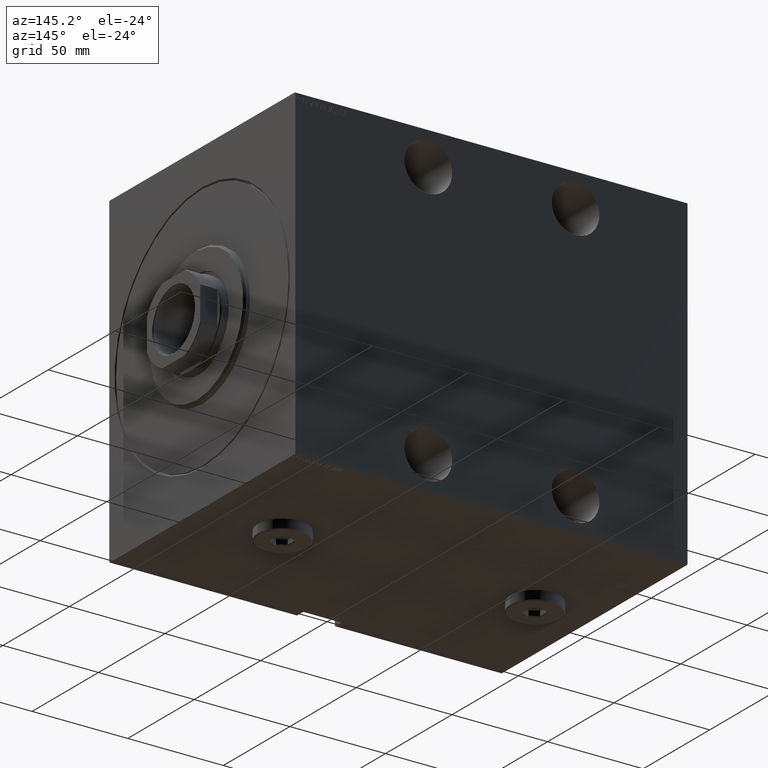
[diagram: clean part render]
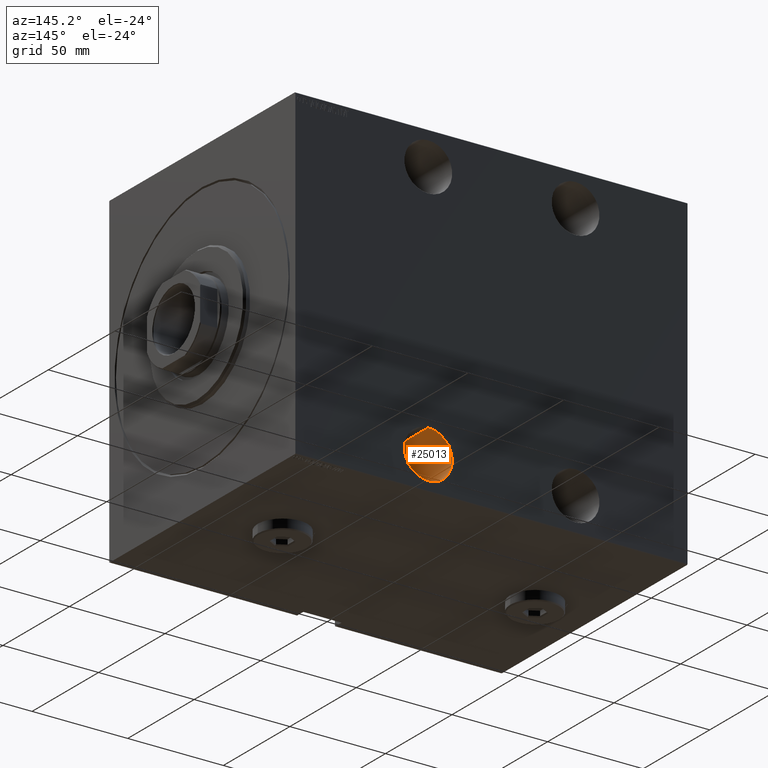
[diagram: same view with one face highlighted and labeled with its STEP entity id]
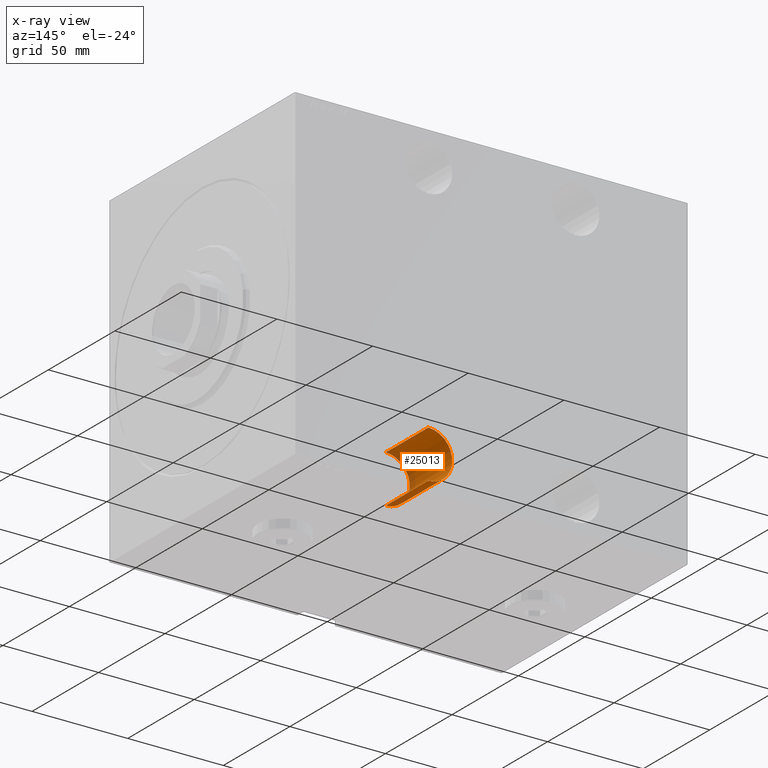
[diagram: x-ray of the same camera — body ghosted, the highlighted face saturated]
A machine part, auxiliary view. The second image highlights one B-rep face of the part: STEP entity #25013.
The next image is the same camera in x-ray: the body ghosted, the highlighted face saturated — about 11% of this face is hidden behind the body in this view.
In plain terms, the highlighted cylindrical surface (edge-blend (fillet) strip) has radius 12.5 mm, axis along (0, 1, -0).
Its self-contained STEP definition (entity closure, byte-faithful):
#487 = CARTESIAN_POINT ( 'NONE',  ( 69.49999999999998579, -69.99999999999998579, -55.00000000000004974 ) ) ;
#4274 = ORIENTED_EDGE ( 'NONE', *, *, #7788, .T. ) ;
#4569 = CARTESIAN_POINT ( 'NONE',  ( 69.49999999999998579, -37.99999999999999289, -80.00000000000004263 ) ) ;
#4865 = CARTESIAN_POINT ( 'NONE',  ( 69.49999999999998579, -37.99999999999999289, -80.00000000000004263 ) ) ;
#5990 = LINE ( 'NONE', #6436, #9658 ) ;
#6436 = CARTESIAN_POINT ( 'NONE',  ( 69.49999999999998579, -37.99999999999999289, -55.00000000000004974 ) ) ;
#6846 = ORIENTED_EDGE ( 'NONE', *, *, #33296, .F. ) ;
#6955 = CIRCLE ( 'NONE', #11947, 12.49999999999999645 ) ;
#7072 = DIRECTION ( 'NONE',  ( 0.000000000000000000, 0.000000000000000000, -1.000000000000000000 ) ) ;
#7321 = AXIS2_PLACEMENT_3D ( 'NONE', #10663, #24359, #7072 ) ;
#7788 = EDGE_CURVE ( 'NONE', #18743, #37224, #35258, .T. ) ;
#7900 = DIRECTION ( 'NONE',  ( 0.000000000000000000, 0.000000000000000000, -1.000000000000000000 ) ) ;
#9658 = VECTOR ( 'NONE', #30225, 1000.000000000000000 ) ;
#9772 = DIRECTION ( 'NONE',  ( 0.000000000000000000, 0.000000000000000000, -1.000000000000000000 ) ) ;
#10663 = CARTESIAN_POINT ( 'NONE',  ( 69.49999999999998579, -69.99999999999998579, -67.50000000000004263 ) ) ;
#11054 = CARTESIAN_POINT ( 'NONE',  ( 69.49999999999998579, -37.99999999999999289, -67.50000000000004263 ) ) ;
#11686 = ORIENTED_EDGE ( 'NONE', *, *, #42128, .F. ) ;
#11947 = AXIS2_PLACEMENT_3D ( 'NONE', #12528, #25777, #9772 ) ;
#12528 = CARTESIAN_POINT ( 'NONE',  ( 69.49999999999998579, -37.99999999999999289, -67.50000000000004263 ) ) ;
#17993 = DIRECTION ( 'NONE',  ( -0.000000000000000000, -1.000000000000000000, -0.000000000000000000 ) ) ;
#18743 = VERTEX_POINT ( 'NONE', #24617 ) ;
#22035 = CARTESIAN_POINT ( 'NONE',  ( 69.49999999999998579, -37.99999999999999289, -55.00000000000004974 ) ) ;
#22878 = EDGE_LOOP ( 'NONE', ( #6846, #11686, #38357, #4274 ) ) ;
#23323 = VERTEX_POINT ( 'NONE', #4569 ) ;
#24359 = DIRECTION ( 'NONE',  ( 0.000000000000000000, -1.000000000000000000, 0.000000000000000000 ) ) ;
#24617 = CARTESIAN_POINT ( 'NONE',  ( 69.49999999999998579, -69.99999999999998579, -80.00000000000004263 ) ) ;
#25013 = ADVANCED_FACE ( 'NONE', ( #38620 ), #25198, .F. ) ;
#25198 = CYLINDRICAL_SURFACE ( 'NONE', #31647, 12.49999999999999645 ) ;
#25777 = DIRECTION ( 'NONE',  ( 0.000000000000000000, -1.000000000000000000, 0.000000000000000000 ) ) ;
#30225 = DIRECTION ( 'NONE',  ( -0.000000000000000000, -1.000000000000000000, -0.000000000000000000 ) ) ;
#31647 = AXIS2_PLACEMENT_3D ( 'NONE', #11054, #17993, #7900 ) ;
#33296 = EDGE_CURVE ( 'NONE', #42544, #37224, #5990, .T. ) ;
#35258 = CIRCLE ( 'NONE', #7321, 12.49999999999999645 ) ;
#37224 = VERTEX_POINT ( 'NONE', #487 ) ;
#38357 = ORIENTED_EDGE ( 'NONE', *, *, #38971, .T. ) ;
#38620 = FACE_OUTER_BOUND ( 'NONE', #22878, .T. ) ;
#38971 = EDGE_CURVE ( 'NONE', #23323, #18743, #42557, .T. ) ;
#39058 = VECTOR ( 'NONE', #39182, 1000.000000000000000 ) ;
#39182 = DIRECTION ( 'NONE',  ( -0.000000000000000000, -1.000000000000000000, -0.000000000000000000 ) ) ;
#42128 = EDGE_CURVE ( 'NONE', #23323, #42544, #6955, .T. ) ;
#42544 = VERTEX_POINT ( 'NONE', #22035 ) ;
#42557 = LINE ( 'NONE', #4865, #39058 ) ;